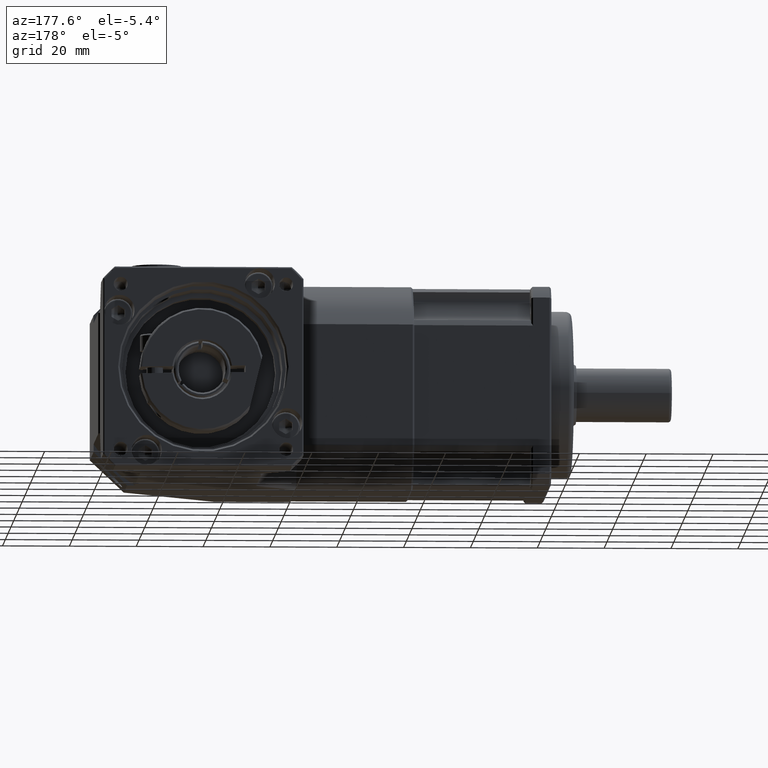
[diagram: clean part render]
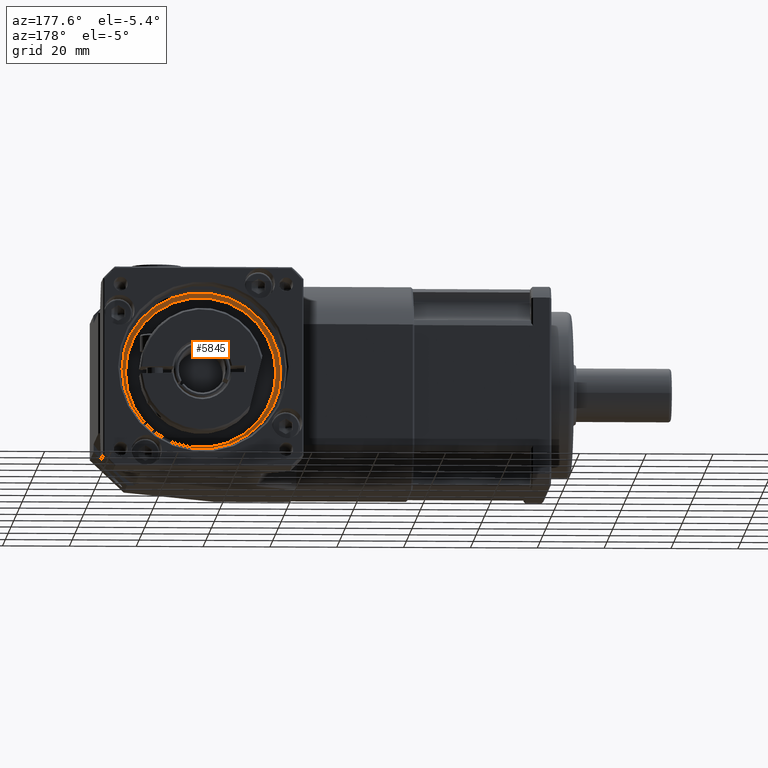
[diagram: same view with one face highlighted and labeled with its STEP entity id]
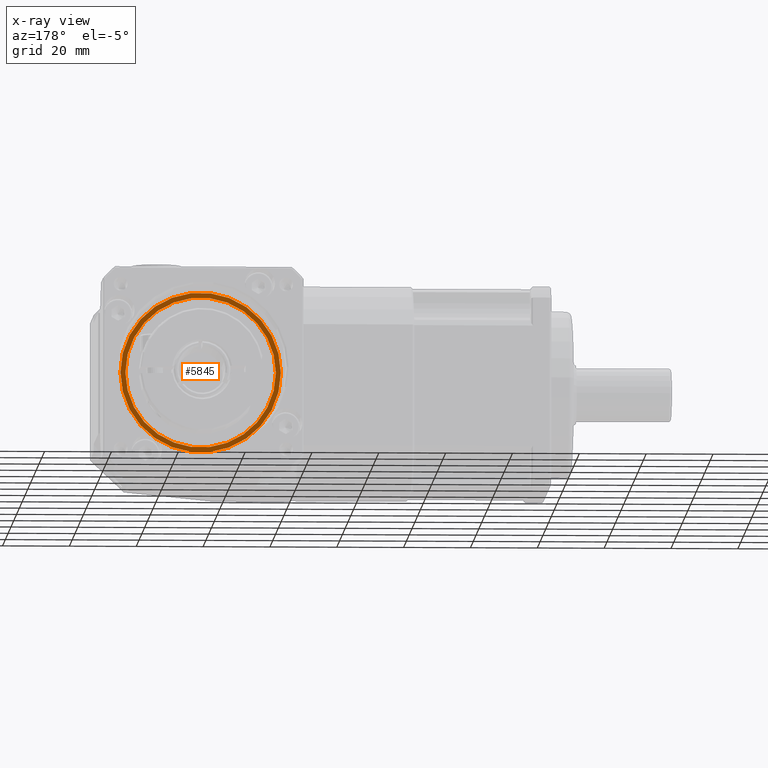
[diagram: x-ray of the same camera — body ghosted, the highlighted face saturated]
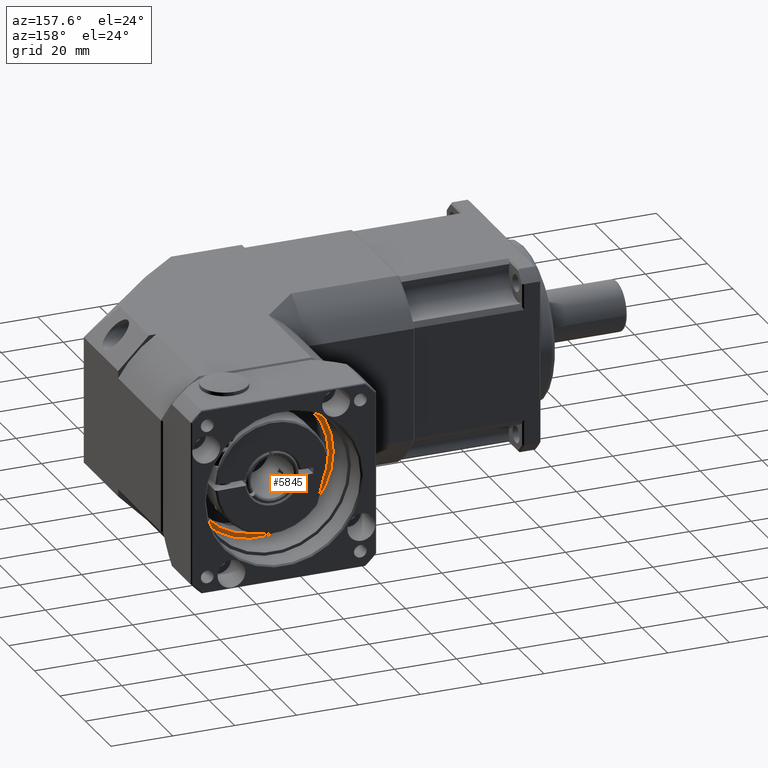
[diagram: same view with one face highlighted and labeled with its STEP entity id]
A machine part, auxiliary view. The second image highlights one B-rep face of the part: STEP entity #5845.
The next image is the same camera in x-ray: the body ghosted, the highlighted face saturated — about 0% of this face is hidden behind the body in this view.
A second angle (auxiliary view) of the same face is appended — the face is thin or edge-on in the first view.
In plain terms, the highlighted planar face has unit normal (0, -1, 0).
Its self-contained STEP definition (entity closure, byte-faithful):
#945=PLANE('',#6366);
#1152=FACE_BOUND('',#1846,.T.);
#1377=FACE_OUTER_BOUND('',#1845,.T.);
#1845=EDGE_LOOP('',(#4222));
#1846=EDGE_LOOP('',(#4223));
#2325=CIRCLE('',#6365,24.);
#2326=CIRCLE('',#6367,22.5);
#2692=VERTEX_POINT('',#9306);
#2693=VERTEX_POINT('',#9309);
#3272=EDGE_CURVE('',#2692,#2692,#2325,.T.);
#3273=EDGE_CURVE('',#2693,#2693,#2326,.T.);
#4222=ORIENTED_EDGE('',*,*,#3272,.F.);
#4223=ORIENTED_EDGE('',*,*,#3273,.T.);
#5845=ADVANCED_FACE('',(#1377,#1152),#945,.F.);
#6365=AXIS2_PLACEMENT_3D('',#9307,#7380,#7381);
#6366=AXIS2_PLACEMENT_3D('',#9308,#7382,#7383);
#6367=AXIS2_PLACEMENT_3D('',#9310,#7384,#7385);
#7380=DIRECTION('center_axis',(1.22283591850135E-15,-1.,1.31997762995428E-15));
#7381=DIRECTION('ref_axis',(3.97598620693892E-15,-1.31997762995428E-15,
-1.));
#7382=DIRECTION('center_axis',(1.22283591850135E-15,-1.,1.31997762995428E-15));
#7383=DIRECTION('ref_axis',(4.2632564145606E-15,-1.4210854715202E-15,-1.));
#7384=DIRECTION('center_axis',(1.22283591850135E-15,-1.,1.31997762995428E-15));
#7385=DIRECTION('ref_axis',(3.97598620693892E-15,-1.31997762995428E-15,
-1.));
#9306=CARTESIAN_POINT('',(92.9079195786627,115.154813882048,2.38365056737784));
#9307=CARTESIAN_POINT('Origin',(68.9079195786627,115.154813882048,2.38365056737774));
#9308=CARTESIAN_POINT('Origin',(91.4079195786627,115.154813882048,2.38365056737783));
#9309=CARTESIAN_POINT('',(91.4079195786627,115.154813882048,2.38365056737783));
#9310=CARTESIAN_POINT('Origin',(68.9079195786627,115.154813882048,2.38365056737774));